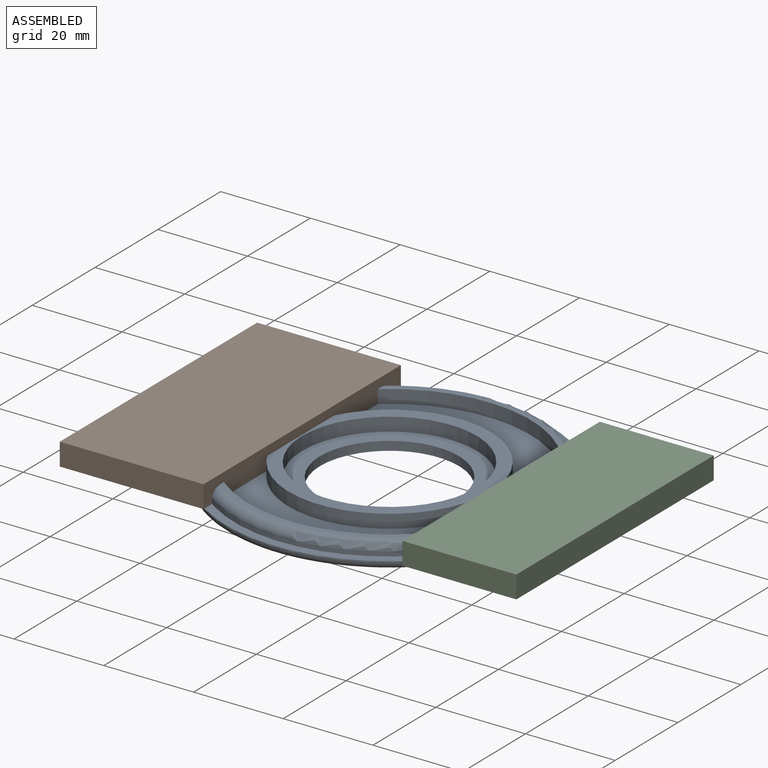
[diagram: assembled view]
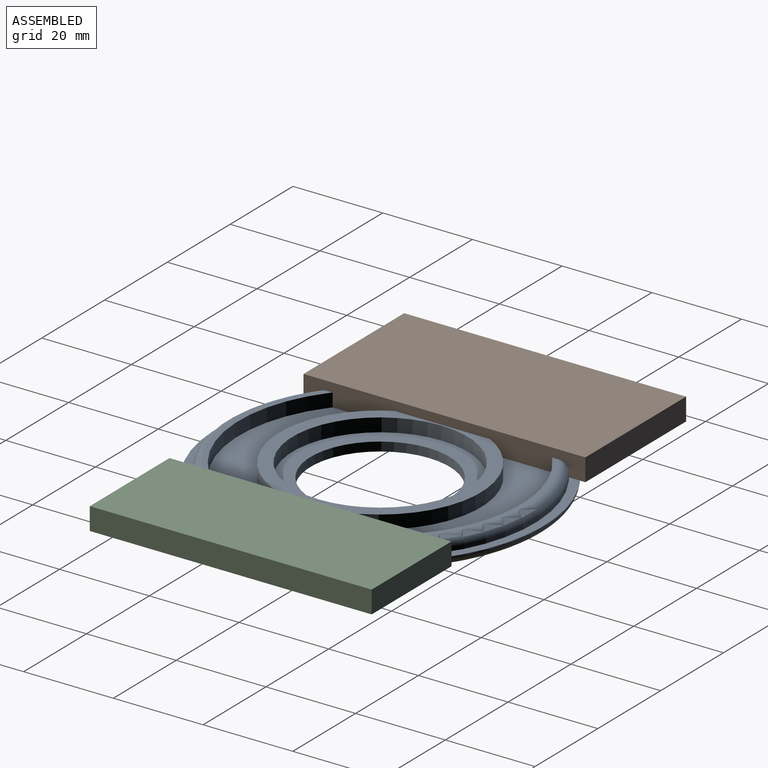
[diagram: assembled view, second angle]
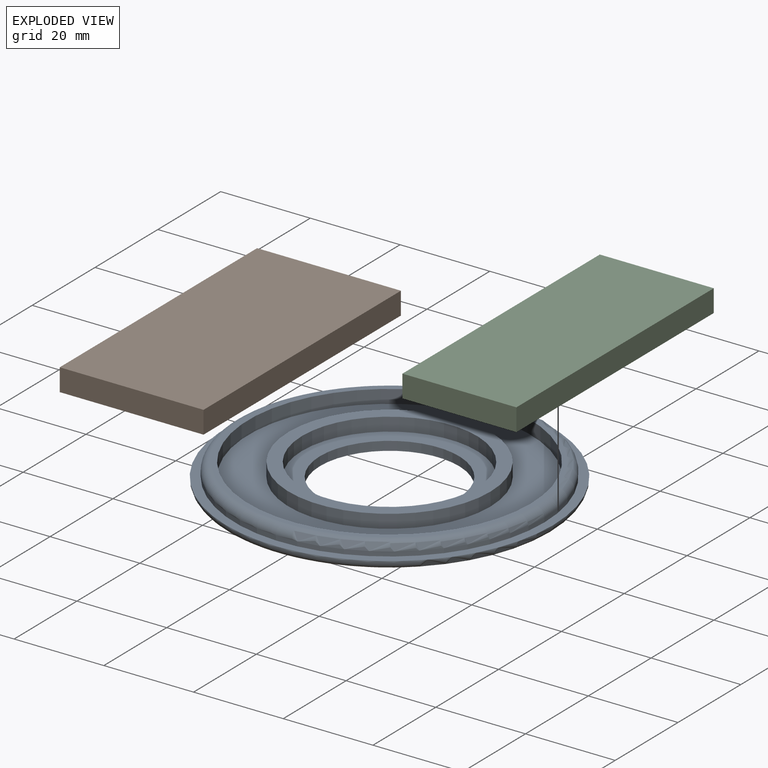
[diagram: exploded view]
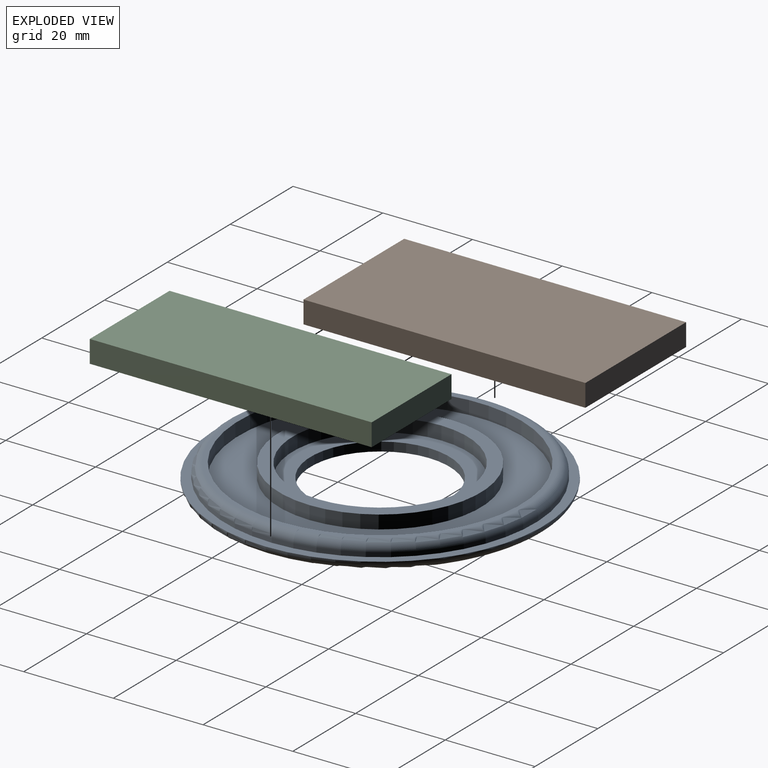
[diagram: exploded view, second angle]
ASSEMBLY  parts=3 mates=2
PART A: 13 faces, bbox 79x79x5 mm
  f0: plane 63x63mm, normal (0,0,1), area 1526.8mm2, adj f4,f6
  f1: cylinder r=19.5mm len=39mm, axis (0,0,-1), area 367.6mm2, adj f5,f12
  f2: plane 73x73mm, normal (0,0,1), area 446.1mm2, adj f7,f9
  f3: plane 69x69mm, normal (0,0,-1), area 2984.5mm2, adj f9,f11
  f4: cylinder r=22.5mm len=45mm, axis (0,0,-1), area 424.1mm2, adj f0,f5
  f5: plane 45x45mm, normal (0,0,1), area 395.8mm2, adj f1,f4
  f6: cylinder r=31.5mm len=63mm, axis (0,0,-1), area 593.8mm2, adj f0,f8
  f7: cylinder r=34.5mm len=69mm, axis (0,0,-1), area 216.8mm2, adj f2,f10
  f8: plane 65x65mm, normal (0,0,1), area 201.1mm2, adj f6,f10
  f9: torus R=34.5mm, axis (0,0,1), area 706.1mm2, adj f2,f3
  f10: torus R=32.5mm, axis (0,0,1), area 666.7mm2, adj f7,f8
  f11: cylinder r=15.5mm len=31mm, axis (0,0,-1), area 194.8mm2, adj f3,f12
  f12: plane 39x39mm, normal (0,0,1), area 439.8mm2, adj f1,f11
PART B: 6 faces, bbox 62.9x32.1x5 mm
  f0: plane 32.06x5mm, normal (1,0,0), area 160.3mm2, adj f1,f3,f4,f5
  f1: plane 62.85x5mm, normal (0,1,0), area 314.2mm2, adj f0,f2,f4,f5
  f2: plane 32.06x5mm, normal (-1,0,0), area 160.3mm2, adj f1,f3,f4,f5
  f3: plane 62.85x5mm, normal (0,-1,0), area 314.2mm2, adj f0,f2,f4,f5
  f4: plane 62.85x32.06mm, normal (0,0,1), area 2015mm2, adj f0,f1,f2,f3
  f5: plane 62.85x32.06mm, normal (0,0,-1), area 2015mm2, adj f0,f1,f2,f3
PART C: 6 faces, bbox 25.4x62.9x5 mm
  f0: plane 25.4x5mm, normal (0,-1,0), area 127mm2, adj f1,f3,f4,f5
  f1: plane 62.85x5mm, normal (1,0,0), area 314.2mm2, adj f0,f2,f4,f5
  f2: plane 25.4x5mm, normal (0,1,0), area 127mm2, adj f1,f3,f4,f5
  f3: plane 62.85x5mm, normal (-1,0,0), area 314.2mm2, adj f0,f2,f4,f5
  f4: plane 62.85x25.4mm, normal (0,0,1), area 1596.4mm2, adj f0,f1,f2,f3
  f5: plane 62.85x25.4mm, normal (0,0,-1), area 1596.4mm2, adj f0,f1,f2,f3
PLACE A t=(-19.29,-10.04,-10.34)mm
PLACE B rot(axis=(0,0,1),90deg) t=(-55.12,-9.57,-8.34)mm
PLACE C t=(17.4,-8.77,-8.34)mm
MATE planar B.f5 <-> A.f1  axis (0,0,-1) through (-55.12,-9.57,-8.34)mm
MATE planar C.f5 <-> A.f1  axis (0,0,-1) through (17.4,-8.77,-8.34)mm
